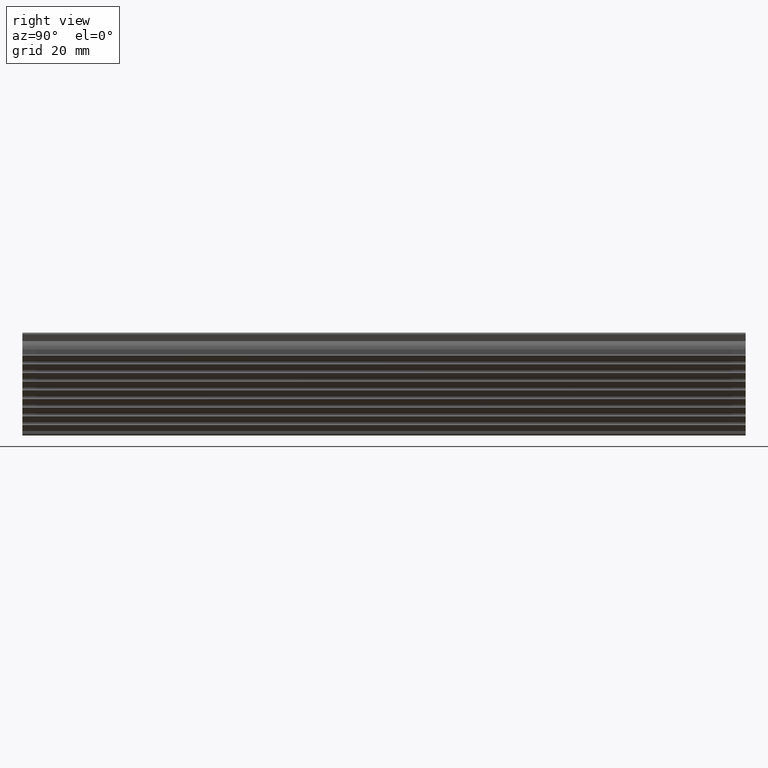
[diagram: clean part render]
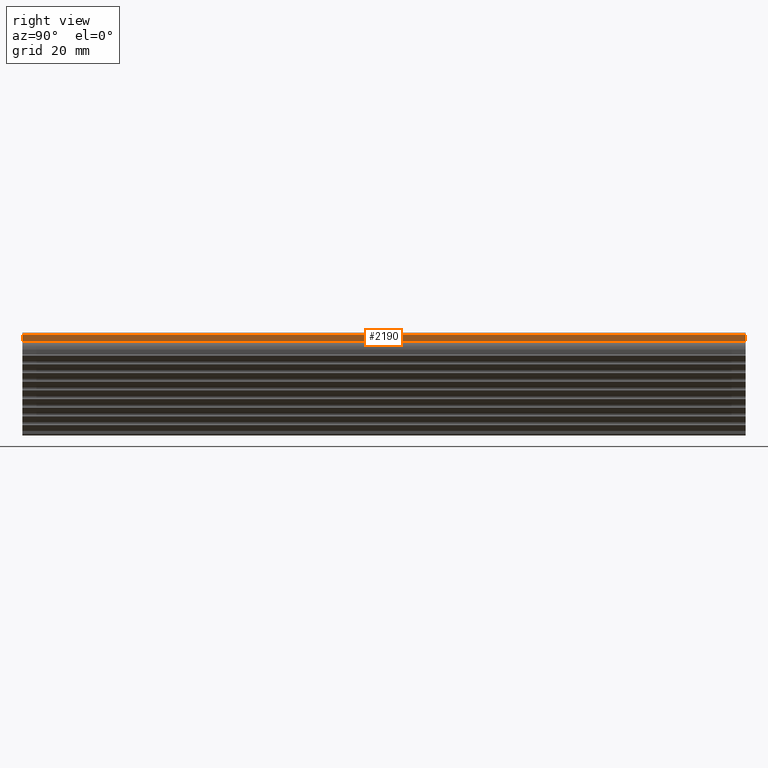
[diagram: same view with one face highlighted and labeled with its STEP entity id]
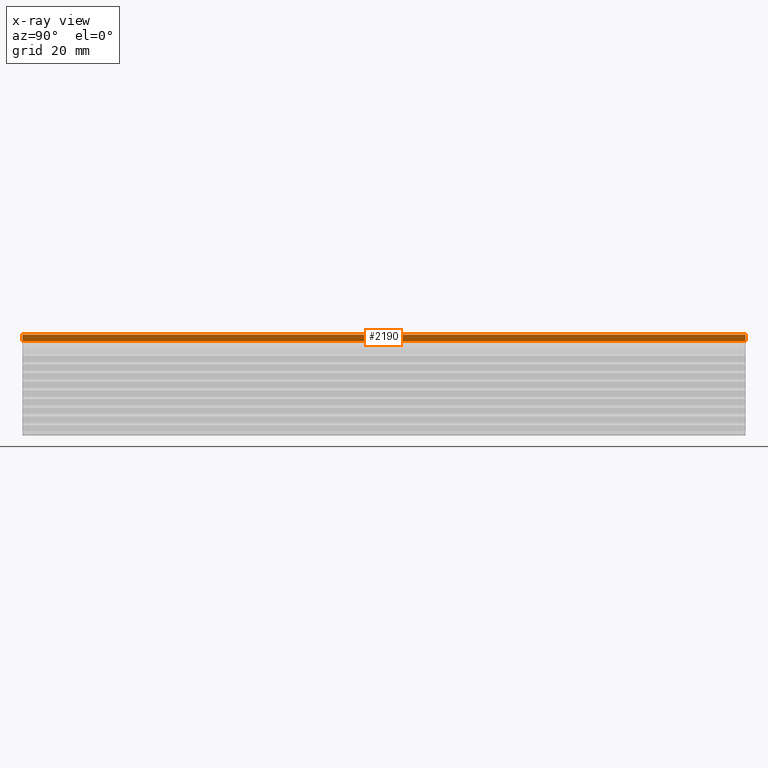
[diagram: x-ray of the same camera — body ghosted, the highlighted face saturated]
A machine part, right view. The second image highlights one B-rep face of the part: STEP entity #2190.
The next image is the same camera in x-ray: the body ghosted, the highlighted face saturated — about 0% of this face is hidden behind the body in this view.
In plain terms, the highlighted face is a freeform B-spline surface patch.
Its self-contained STEP definition (entity closure, byte-faithful):
#860=CARTESIAN_POINT('',(3.014889893381570,0.0,-0.976281813958969));
#861=VERTEX_POINT('',#860);
#875=CARTESIAN_POINT('',(3.482962913144560,0.0,0.770590477448764));
#876=VERTEX_POINT('',#875);
#877=CARTESIAN_POINT('',(3.014889893381570,0.0,-0.976281813958969));
#878=CARTESIAN_POINT('',(3.482962913144560,0.0,0.770590477448764));
#879=QUASI_UNIFORM_CURVE('',1,(#877,#878),.UNSPECIFIED.,.F.,.U.);
#880=EDGE_CURVE('',#861,#876,#879,.T.);
#1064=CARTESIAN_POINT('',(3.482962913144560,200.0,0.770590477448764));
#1065=VERTEX_POINT('',#1064);
#1081=CARTESIAN_POINT('',(3.014889893381570,200.0,-0.976281813958969));
#1082=VERTEX_POINT('',#1081);
#1083=CARTESIAN_POINT('',(3.014889893381570,200.0,-0.976281813958969));
#1084=CARTESIAN_POINT('',(3.482962913144560,200.0,0.770590477448764));
#1085=QUASI_UNIFORM_CURVE('',1,(#1083,#1084),.UNSPECIFIED.,.F.,.U.);
#1086=EDGE_CURVE('',#1082,#1065,#1085,.T.);
#2095=CARTESIAN_POINT('',(3.482962913144560,200.0,0.770590477448764));
#2096=CARTESIAN_POINT('',(3.482962913144560,0.0,0.770590477448764));
#2097=QUASI_UNIFORM_CURVE('',1,(#2095,#2096),.UNSPECIFIED.,.F.,.U.);
#2098=EDGE_CURVE('',#1065,#876,#2097,.T.);
#2175=CARTESIAN_POINT('',(3.506343159574509,-9.989999612361171,0.857846745018802));
#2176=CARTESIAN_POINT('',(2.991509634396937,-9.989999612361171,-1.063538128383776));
#2177=CARTESIAN_POINT('',(3.506343159574509,209.990004976779200,0.857846745018802));
#2178=CARTESIAN_POINT('',(2.991509634396937,209.990004976779200,-1.063538128383776));
#2179=B_SPLINE_SURFACE_WITH_KNOTS('',1,1,((#2175,#2177),(#2176,#2178)),.UNSPECIFIED.,.F.,.F.,.U.,(2,2),(2,2),(0.0,1.989163992833926),(0.0,219.980004589140410),.UNSPECIFIED.);
#2180=ORIENTED_EDGE('',*,*,#880,.F.);
#2181=CARTESIAN_POINT('',(3.014889893381570,200.0,-0.976281813958969));
#2182=CARTESIAN_POINT('',(3.014889893381570,0.0,-0.976281813958969));
#2183=QUASI_UNIFORM_CURVE('',1,(#2181,#2182),.UNSPECIFIED.,.F.,.U.);
#2184=EDGE_CURVE('',#1082,#861,#2183,.T.);
#2185=ORIENTED_EDGE('',*,*,#2184,.F.);
#2186=ORIENTED_EDGE('',*,*,#1086,.T.);
#2187=ORIENTED_EDGE('',*,*,#2098,.T.);
#2188=EDGE_LOOP('',(#2180,#2185,#2186,#2187));
#2189=FACE_OUTER_BOUND('',#2188,.T.);
#2190=ADVANCED_FACE('',(#2189),#2179,.T.);